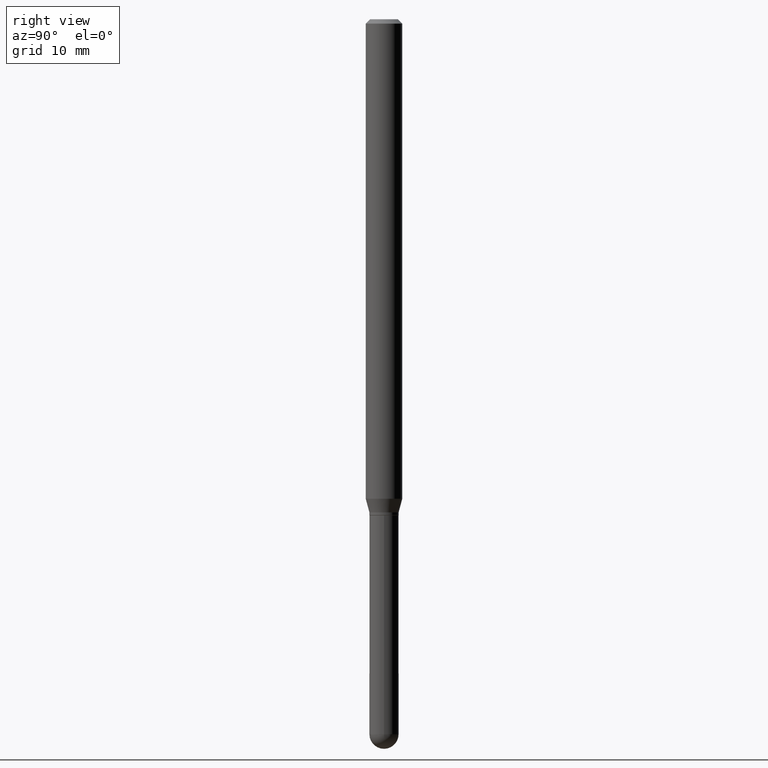
[diagram: clean part render]
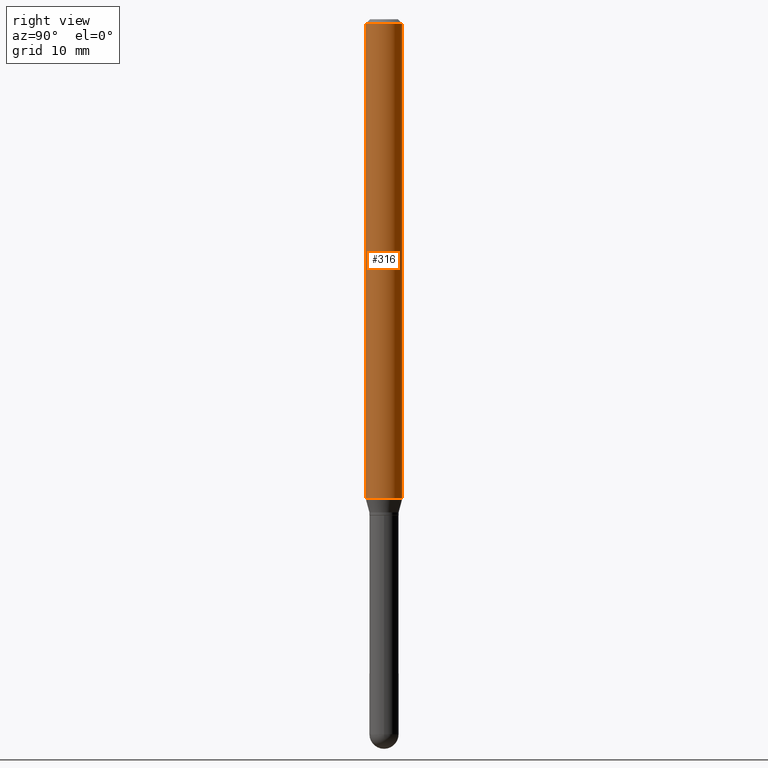
[diagram: same view with one face highlighted and labeled with its STEP entity id]
A machine part, right view. The second image highlights one B-rep face of the part: STEP entity #316.
In plain terms, the highlighted cylindrical surface (edge-blend (fillet) strip) has radius 1.5875 mm, axis along (-0, 0, 1).
Its self-contained STEP definition (entity closure, byte-faithful):
#22 = CARTESIAN_POINT ( 'NONE',  ( 4.440892098500625669E-16, 0.06250000000000000000, -2.182102824414611697E-16 ) ) ;
#26 = DIRECTION ( 'NONE',  ( -2.445550381001349235E-29, 3.491364519063378714E-15, 1.000000000000000000 ) ) ;
#36 = EDGE_CURVE ( 'NONE', #297, #41, #479, .T. ) ;
#41 = VERTEX_POINT ( 'NONE', #435 ) ;
#52 = ORIENTED_EDGE ( 'NONE', *, *, #388, .F. ) ;
#57 = EDGE_CURVE ( 'NONE', #297, #80, #431, .T. ) ;
#60 = DIRECTION ( 'NONE',  ( -2.445550381001348954E-29, 3.491364519063378714E-15, 1.000000000000000000 ) ) ;
#67 = DIRECTION ( 'NONE',  ( -2.445550381001349235E-29, 3.491364519063378714E-15, 1.000000000000000000 ) ) ;
#70 = VECTOR ( 'NONE', #105, 39.37007874015748143 ) ;
#79 = DIRECTION ( 'NONE',  ( -2.445550381001349235E-29, 3.491364519063378714E-15, 1.000000000000000000 ) ) ;
#80 = VERTEX_POINT ( 'NONE', #171 ) ;
#83 = ORIENTED_EDGE ( 'NONE', *, *, #57, .T. ) ;
#105 = DIRECTION ( 'NONE',  ( -2.445550381001348954E-29, 3.491364519063378714E-15, 1.000000000000000000 ) ) ;
#128 = ORIENTED_EDGE ( 'NONE', *, *, #36, .F. ) ;
#133 = ORIENTED_EDGE ( 'NONE', *, *, #284, .T. ) ;
#171 = CARTESIAN_POINT ( 'NONE',  ( 4.440892098501028481E-16, 0.06249999999999429623, -1.643349364905388077 ) ) ;
#179 = LINE ( 'NONE', #22, #300 ) ;
#180 = AXIS2_PLACEMENT_3D ( 'NONE', #486, #67, #217 ) ;
#186 = AXIS2_PLACEMENT_3D ( 'NONE', #347, #26, #417 ) ;
#215 = CARTESIAN_POINT ( 'NONE',  ( 4.440892098501030453E-16, 0.06249999999999995143, -0.01500000000000022669 ) ) ;
#217 = DIRECTION ( 'NONE',  ( -6.982962677686265922E-15, -1.000000000000000000, 4.370956789862821150E-15 ) ) ;
#224 = CARTESIAN_POINT ( 'NONE',  ( 3.668325571502026339E-31, -5.237046778595071055E-17, -0.01500000000000000812 ) ) ;
#239 = VERTEX_POINT ( 'NONE', #215 ) ;
#245 = CIRCLE ( 'NONE', #256, 0.06250000000000000000 ) ;
#256 = AXIS2_PLACEMENT_3D ( 'NONE', #224, #79, #387 ) ;
#284 = EDGE_CURVE ( 'NONE', #80, #239, #179, .T. ) ;
#297 = VERTEX_POINT ( 'NONE', #501 ) ;
#300 = VECTOR ( 'NONE', #60, 39.37007874015748143 ) ;
#303 = CYLINDRICAL_SURFACE ( 'NONE', #186, 0.06250000000000000000 ) ;
#316 = ADVANCED_FACE ( 'NONE', ( #465 ), #303, .T. ) ;
#347 = CARTESIAN_POINT ( 'NONE',  ( 0.000000000000000000, 0.000000000000000000, 0.000000000000000000 ) ) ;
#387 = DIRECTION ( 'NONE',  ( -6.982962677686265922E-15, -1.000000000000000000, 3.483106191921935554E-15 ) ) ;
#388 = EDGE_CURVE ( 'NONE', #41, #239, #245, .T. ) ;
#417 = DIRECTION ( 'NONE',  ( -6.982962677686265922E-15, -1.000000000000000000, 3.491364519063378714E-15 ) ) ;
#431 = CIRCLE ( 'NONE', #180, 0.06250000000000000000 ) ;
#435 = CARTESIAN_POINT ( 'NONE',  ( -4.364351673553912750E-16, -0.06250000000000005551, -0.01499999999999979128 ) ) ;
#448 = CARTESIAN_POINT ( 'NONE',  ( -4.364351673553916201E-16, -0.06250000000000000000, 2.182102824414611697E-16 ) ) ;
#465 = FACE_OUTER_BOUND ( 'NONE', #489, .T. ) ;
#479 = LINE ( 'NONE', #448, #70 ) ;
#486 = CARTESIAN_POINT ( 'NONE',  ( 4.018893665462696370E-29, -5.737531665056008006E-15, -1.643349364905387855 ) ) ;
#489 = EDGE_LOOP ( 'NONE', ( #83, #133, #52, #128 ) ) ;
#501 = CARTESIAN_POINT ( 'NONE',  ( -4.364351673553512403E-16, -0.06250000000000570377, -1.643349364905387633 ) ) ;